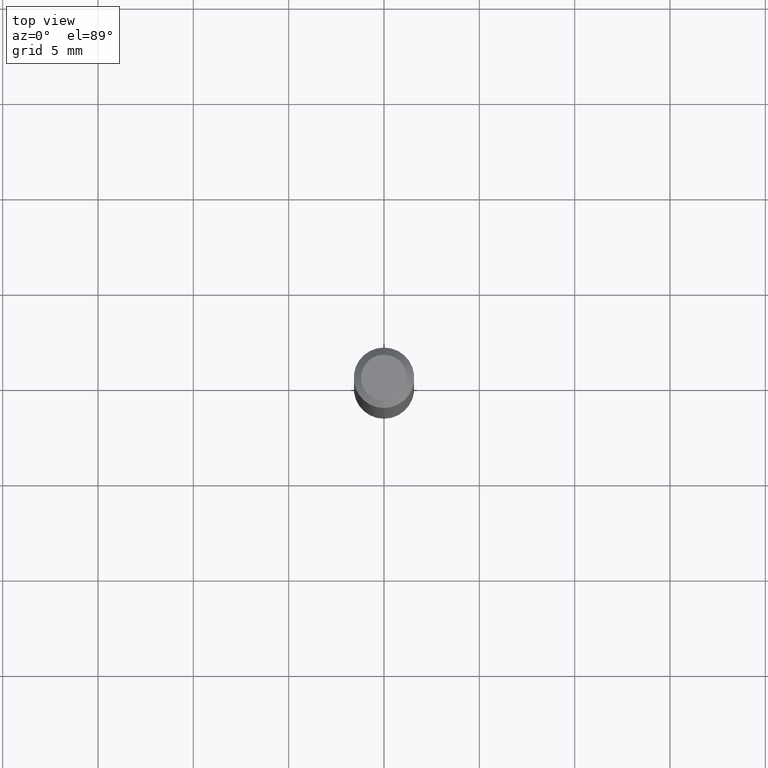
[diagram: clean part render]
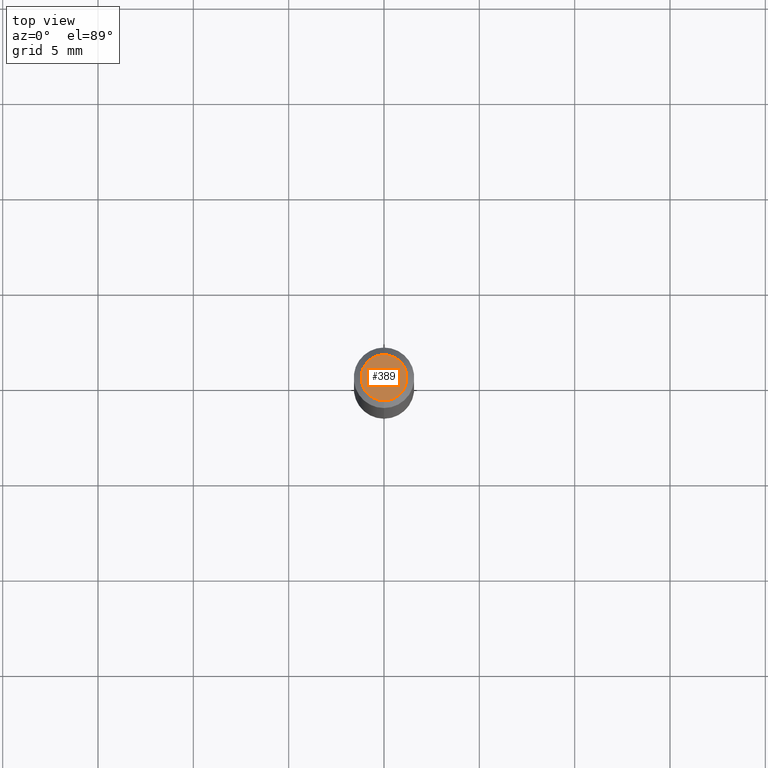
[diagram: same view with one face highlighted and labeled with its STEP entity id]
A machine part, top view. The second image highlights one B-rep face of the part: STEP entity #389.
In plain terms, the highlighted planar face has unit normal (0, -0, -1).
Its self-contained STEP definition (entity closure, byte-faithful):
#12 = FACE_OUTER_BOUND ( 'NONE', #19, .T. ) ;
#19 = EDGE_LOOP ( 'NONE', ( #137, #244 ) ) ;
#28 = AXIS2_PLACEMENT_3D ( 'NONE', #128, #474, #361 ) ;
#59 = AXIS2_PLACEMENT_3D ( 'NONE', #138, #97, #413 ) ;
#67 = CARTESIAN_POINT ( 'NONE',  ( -3.773273898774340269E-16, -0.04749999999999999362, 1.003456856299693000E-16 ) ) ;
#84 = PLANE ( 'NONE',  #28 ) ;
#93 = CARTESIAN_POINT ( 'NONE',  ( 1.601778314939720223E-45, -2.286922575068692534E-31, -6.549995600873813326E-17 ) ) ;
#97 = DIRECTION ( 'NONE',  ( -2.445464718672532152E-29, 3.491487192393841779E-15, 1.000000000000000000 ) ) ;
#121 = CIRCLE ( 'NONE', #454, 0.04749999999999999362 ) ;
#128 = CARTESIAN_POINT ( 'NONE',  ( 3.316907271900976096E-16, 0.04749999999999999362, -1.985956196430765430E-16 ) ) ;
#137 = ORIENTED_EDGE ( 'NONE', *, *, #493, .T. ) ;
#138 = CARTESIAN_POINT ( 'NONE',  ( 1.601778314939720223E-45, -2.286922575068692534E-31, -6.549995600873813326E-17 ) ) ;
#203 = EDGE_CURVE ( 'NONE', #498, #374, #306, .T. ) ;
#244 = ORIENTED_EDGE ( 'NONE', *, *, #203, .T. ) ;
#306 = CIRCLE ( 'NONE', #59, 0.04749999999999999362 ) ;
#311 = DIRECTION ( 'NONE',  ( -2.445464718672532152E-29, 3.491487192393841779E-15, 1.000000000000000000 ) ) ;
#361 = DIRECTION ( 'NONE',  ( 6.982962677686265922E-15, 1.000000000000000000, -3.491487192393841779E-15 ) ) ;
#374 = VERTEX_POINT ( 'NONE', #500 ) ;
#389 = ADVANCED_FACE ( 'NONE', ( #12 ), #84, .F. ) ;
#413 = DIRECTION ( 'NONE',  ( -6.982962677686266711E-15, -1.000000000000000000, 3.491487192393841779E-15 ) ) ;
#454 = AXIS2_PLACEMENT_3D ( 'NONE', #93, #311, #499 ) ;
#474 = DIRECTION ( 'NONE',  ( 2.445464718672531872E-29, -3.491487192393841779E-15, -1.000000000000000000 ) ) ;
#493 = EDGE_CURVE ( 'NONE', #374, #498, #121, .T. ) ;
#498 = VERTEX_POINT ( 'NONE', #67 ) ;
#499 = DIRECTION ( 'NONE',  ( -6.982962677686266711E-15, -1.000000000000000000, 3.491487192393841779E-15 ) ) ;
#500 = CARTESIAN_POINT ( 'NONE',  ( 3.840629472727447874E-16, 0.04749999999999999362, -2.313455976474456528E-16 ) ) ;